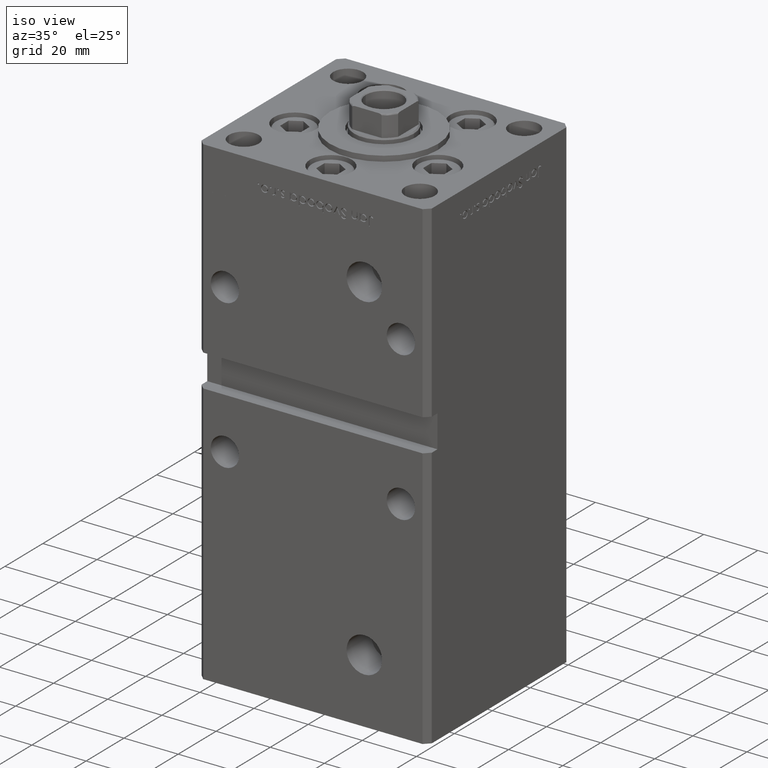
[diagram: clean part render]
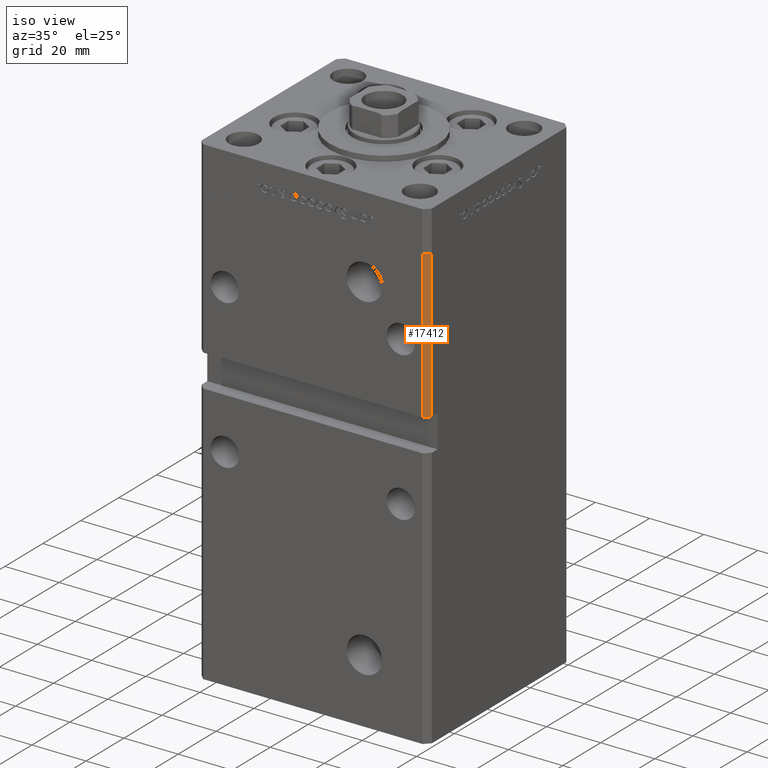
[diagram: same view with one face highlighted and labeled with its STEP entity id]
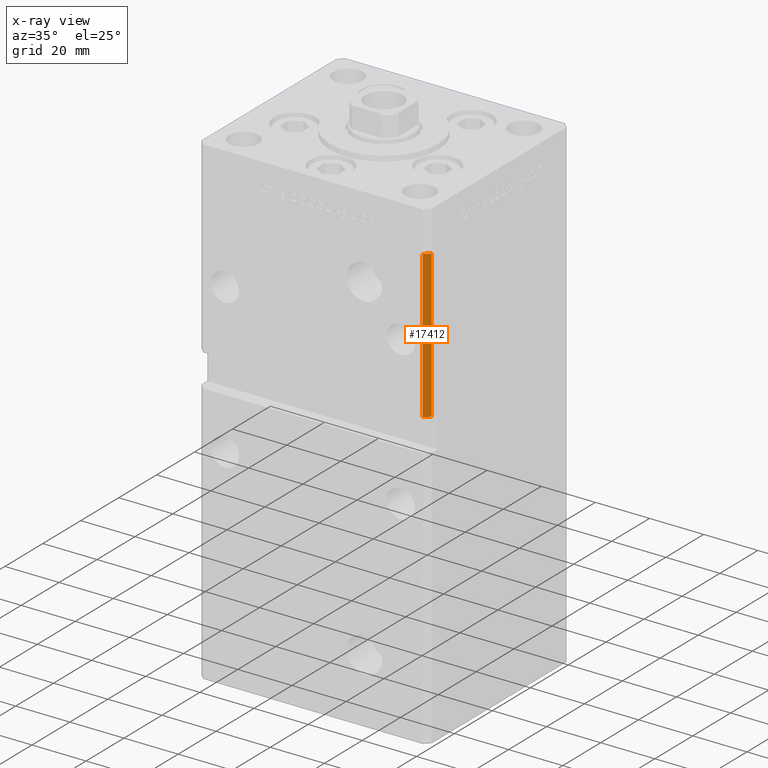
[diagram: x-ray of the same camera — body ghosted, the highlighted face saturated]
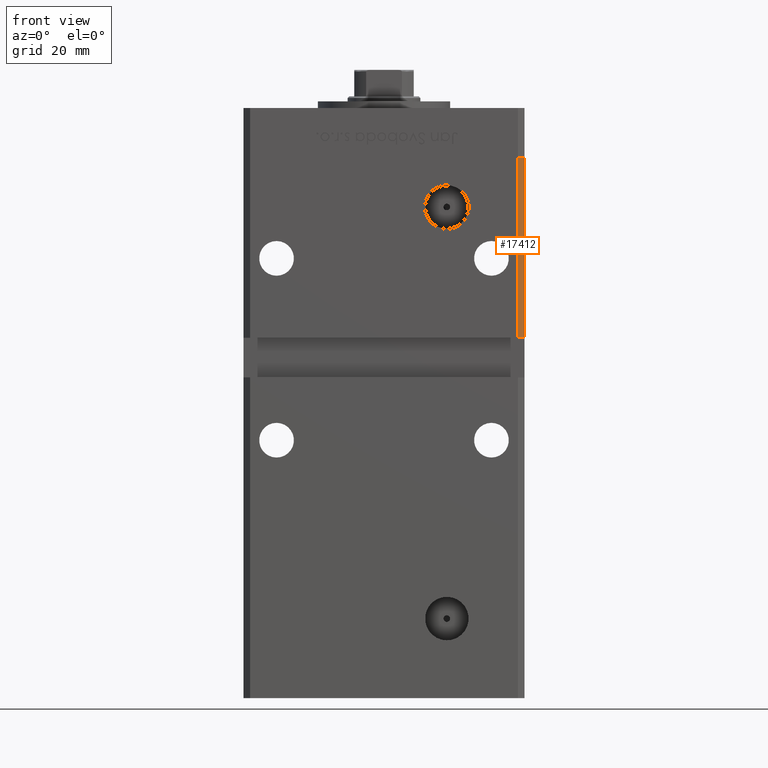
[diagram: same view with one face highlighted and labeled with its STEP entity id]
A machine part, iso view. The second image highlights one B-rep face of the part: STEP entity #17412.
The next image is the same camera in x-ray: the body ghosted, the highlighted face saturated — about 0% of this face is hidden behind the body in this view.
A second angle (front view) of the same face is appended — the face is thin or edge-on in the first view.
In plain terms, the highlighted planar face has unit normal (0.7071, -0.7071, 0).
Its self-contained STEP definition (entity closure, byte-faithful):
#37 = LINE ( 'NONE', #16428, #46246 ) ;
#303 = DIRECTION ( 'NONE',  ( -0.000000000000000000, -0.000000000000000000, -1.000000000000000000 ) ) ;
#755 = AXIS2_PLACEMENT_3D ( 'NONE', #909, #5226, #8977 ) ;
#909 = CARTESIAN_POINT ( 'NONE',  ( 42.49999999999998579, -35.50000000000000711, 148.5000000000000000 ) ) ;
#1246 = CARTESIAN_POINT ( 'NONE',  ( 40.49999999999998579, -37.50000000000000711, 148.5000000000000000 ) ) ;
#1659 = ORIENTED_EDGE ( 'NONE', *, *, #25145, .F. ) ;
#2350 = ORIENTED_EDGE ( 'NONE', *, *, #47088, .T. ) ;
#3005 = LINE ( 'NONE', #30987, #22923 ) ;
#5226 = DIRECTION ( 'NONE',  ( 0.7071067811865475727, -0.7071067811865475727, 0.000000000000000000 ) ) ;
#8977 = DIRECTION ( 'NONE',  ( 0.7071067811865474617, 0.7071067811865474617, 0.000000000000000000 ) ) ;
#9285 = VECTOR ( 'NONE', #43380, 1000.000000000000114 ) ;
#10847 = VERTEX_POINT ( 'NONE', #41738 ) ;
#13801 = DIRECTION ( 'NONE',  ( -0.000000000000000000, -0.000000000000000000, -1.000000000000000000 ) ) ;
#14328 = CARTESIAN_POINT ( 'NONE',  ( 42.49999999999998579, -35.50000000000000711, 148.5000000000000000 ) ) ;
#15467 = EDGE_CURVE ( 'NONE', #24820, #10847, #37, .T. ) ;
#16251 = FACE_OUTER_BOUND ( 'NONE', #39290, .T. ) ;
#16428 = CARTESIAN_POINT ( 'NONE',  ( 40.49999999999998579, -37.50000000000000711, 148.5000000000000000 ) ) ;
#17412 = ADVANCED_FACE ( 'NONE', ( #16251 ), #32665, .T. ) ;
#18372 = CARTESIAN_POINT ( 'NONE',  ( 42.49999999999998579, -35.50000000000000711, 94.00000000000000000 ) ) ;
#18914 = LINE ( 'NONE', #18372, #9285 ) ;
#22923 = VECTOR ( 'NONE', #51961, 1000.000000000000114 ) ;
#24820 = VERTEX_POINT ( 'NONE', #1246 ) ;
#25145 = EDGE_CURVE ( 'NONE', #41243, #47483, #39082, .T. ) ;
#27484 = ORIENTED_EDGE ( 'NONE', *, *, #50916, .F. ) ;
#27491 = VECTOR ( 'NONE', #13801, 1000.000000000000000 ) ;
#30987 = CARTESIAN_POINT ( 'NONE',  ( 42.49999999999998579, -35.50000000000000711, 148.5000000000000000 ) ) ;
#31517 = ORIENTED_EDGE ( 'NONE', *, *, #15467, .T. ) ;
#32665 = PLANE ( 'NONE',  #755 ) ;
#39082 = LINE ( 'NONE', #14328, #27491 ) ;
#39290 = EDGE_LOOP ( 'NONE', ( #27484, #1659, #2350, #31517 ) ) ;
#41243 = VERTEX_POINT ( 'NONE', #50460 ) ;
#41738 = CARTESIAN_POINT ( 'NONE',  ( 40.49999999999997868, -37.50000000000000711, 94.00000000000000000 ) ) ;
#43380 = DIRECTION ( 'NONE',  ( -0.7071067811865474617, -0.7071067811865474617, 0.000000000000000000 ) ) ;
#46246 = VECTOR ( 'NONE', #303, 1000.000000000000000 ) ;
#47088 = EDGE_CURVE ( 'NONE', #41243, #24820, #3005, .T. ) ;
#47483 = VERTEX_POINT ( 'NONE', #49458 ) ;
#49458 = CARTESIAN_POINT ( 'NONE',  ( 42.49999999999998579, -35.50000000000000711, 94.00000000000000000 ) ) ;
#50460 = CARTESIAN_POINT ( 'NONE',  ( 42.49999999999998579, -35.50000000000000711, 148.5000000000000000 ) ) ;
#50916 = EDGE_CURVE ( 'NONE', #47483, #10847, #18914, .T. ) ;
#51961 = DIRECTION ( 'NONE',  ( -0.7071067811865474617, -0.7071067811865474617, 0.000000000000000000 ) ) ;